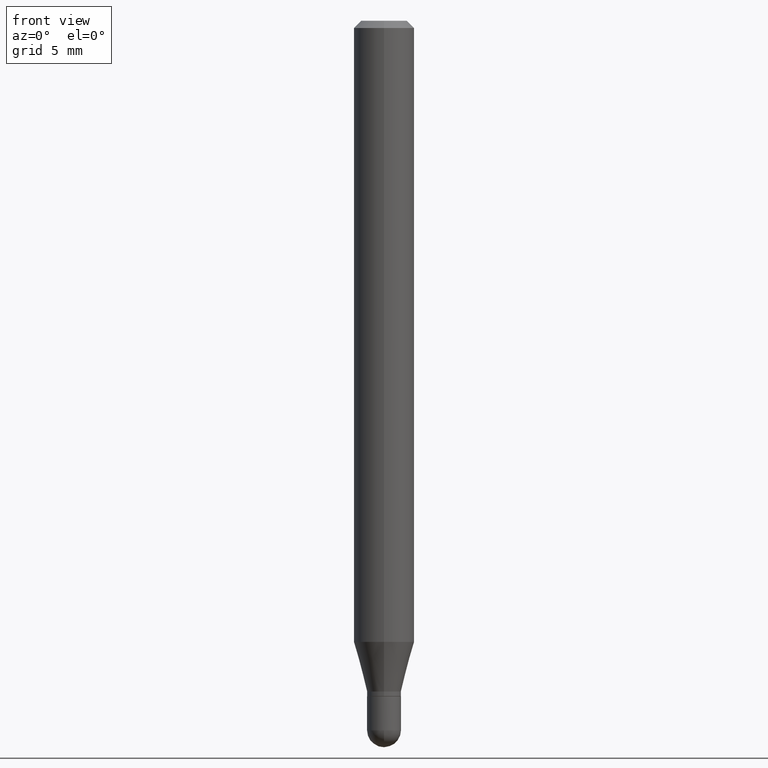
[diagram: clean part render]
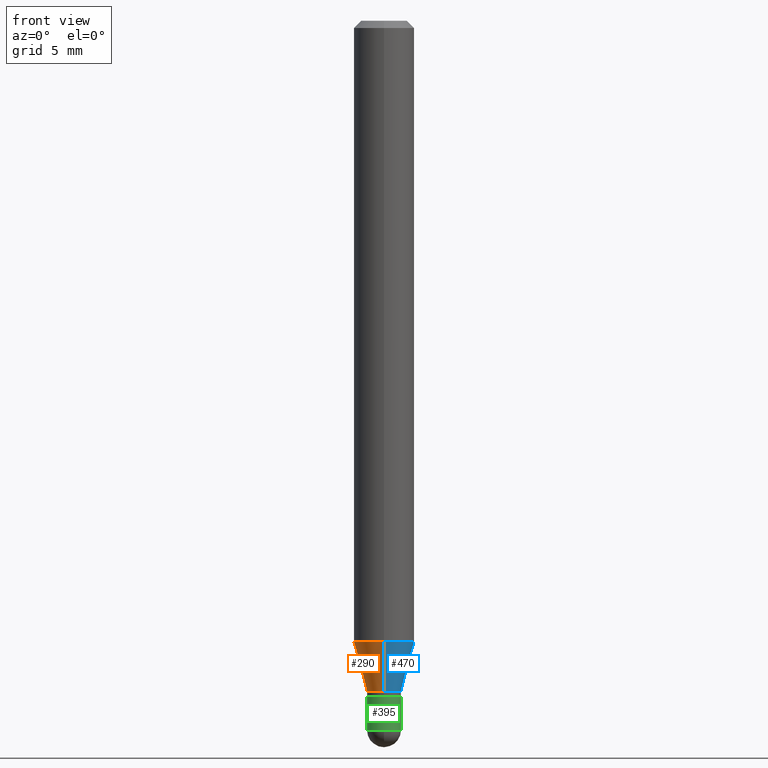
[diagram: same view with three faces highlighted in distinct colors, each labeled with its STEP entity id]
A machine part, front view with three faces highlighted in distinct colors.
Their STEP definitions:

[orange] entity #290 — the highlighted conical surface has half-angle 15 deg.
#10 = DIRECTION ( 'NONE',  ( -6.982962677686265133E-15, -1.000000000000000000, 0.000000000000000000 ) ) ;
#14 = CARTESIAN_POINT ( 'NONE',  ( -4.364351673553604601E-16, -0.06250000000000451028, -1.282368602791855716 ) ) ;
#37 = AXIS2_PLACEMENT_3D ( 'NONE', #57, #213, #363 ) ;
#45 = DIRECTION ( 'NONE',  ( -2.445423426716322459E-29, 3.491546324825326452E-15, 1.000000000000000000 ) ) ;
#52 = EDGE_CURVE ( 'NONE', #141, #492, #437, .T. ) ;
#57 = CARTESIAN_POINT ( 'NONE',  ( 3.386911446002107109E-29, -4.835791659883077532E-15, -1.385000000000000009 ) ) ;
#61 = DIRECTION ( 'NONE',  ( -1.807323732225328167E-15, -0.2588190451025179084, 0.9659258262890690894 ) ) ;
#66 = DIRECTION ( 'NONE',  ( -2.445423426716322459E-29, 3.491546324825326452E-15, 1.000000000000000000 ) ) ;
#83 = CARTESIAN_POINT ( 'NONE',  ( 3.386911446002107109E-29, -4.835791659883077532E-15, -1.385000000000000009 ) ) ;
#98 = EDGE_CURVE ( 'NONE', #141, #485, #317, .T. ) ;
#103 = VECTOR ( 'NONE', #319, 39.37007874015748854 ) ;
#119 = CIRCLE ( 'NONE', #294, 0.06250000000000000000 ) ;
#131 = CARTESIAN_POINT ( 'NONE',  ( 4.440892098500936776E-16, 0.06249999999999548972, -1.282368602791856160 ) ) ;
#141 = VERTEX_POINT ( 'NONE', #481 ) ;
#148 = DIRECTION ( 'NONE',  ( -6.982962677686265922E-15, -1.000000000000000000, 4.370956789862821150E-15 ) ) ;
#153 = ORIENTED_EDGE ( 'NONE', *, *, #429, .F. ) ;
#154 = CONICAL_SURFACE ( 'NONE', #37, 0.03499999999999992700, 0.2617993877991499629 ) ;
#185 = EDGE_LOOP ( 'NONE', ( #266, #343, #221, #153 ) ) ;
#187 = VERTEX_POINT ( 'NONE', #14 ) ;
#213 = DIRECTION ( 'NONE',  ( -2.445423426716322459E-29, 3.491546324825326452E-15, 1.000000000000000000 ) ) ;
#221 = ORIENTED_EDGE ( 'NONE', *, *, #246, .T. ) ;
#246 = EDGE_CURVE ( 'NONE', #492, #187, #370, .T. ) ;
#266 = ORIENTED_EDGE ( 'NONE', *, *, #98, .F. ) ;
#290 = ADVANCED_FACE ( 'NONE', ( #402 ), #154, .T. ) ;
#294 = AXIS2_PLACEMENT_3D ( 'NONE', #409, #66, #148 ) ;
#295 = CARTESIAN_POINT ( 'NONE',  ( -2.444036937189849110E-16, -0.03500000000000476341, -1.385000000000000009 ) ) ;
#317 = LINE ( 'NONE', #357, #103 ) ;
#319 = DIRECTION ( 'NONE',  ( 1.839019923739597949E-15, 0.2588190451025246253, 0.9659258262890670910 ) ) ;
#322 = CARTESIAN_POINT ( 'NONE',  ( -2.444036937189849110E-16, -0.03500000000000476341, -1.385000000000000009 ) ) ;
#343 = ORIENTED_EDGE ( 'NONE', *, *, #52, .T. ) ;
#357 = CARTESIAN_POINT ( 'NONE',  ( 2.486899575160683688E-16, 0.03499999999999509059, -1.385000000000000009 ) ) ;
#363 = DIRECTION ( 'NONE',  ( -6.982962677686265133E-15, -1.000000000000000000, 0.000000000000000000 ) ) ;
#370 = LINE ( 'NONE', #295, #486 ) ;
#402 = FACE_OUTER_BOUND ( 'NONE', #185, .T. ) ;
#409 = CARTESIAN_POINT ( 'NONE',  ( 3.135934222952683289E-29, -4.477449382149292879E-15, -1.282368602791855938 ) ) ;
#429 = EDGE_CURVE ( 'NONE', #485, #187, #119, .T. ) ;
#437 = CIRCLE ( 'NONE', #504, 0.03499999999999992700 ) ;
#481 = CARTESIAN_POINT ( 'NONE',  ( 3.463895836830812450E-16, 0.03499999999999509059, -1.385000000000000009 ) ) ;
#485 = VERTEX_POINT ( 'NONE', #131 ) ;
#486 = VECTOR ( 'NONE', #61, 39.37007874015748143 ) ;
#492 = VERTEX_POINT ( 'NONE', #322 ) ;
#504 = AXIS2_PLACEMENT_3D ( 'NONE', #83, #45, #10 ) ;

[blue] entity #470 — the highlighted conical surface has half-angle 15 deg.
#14 = CARTESIAN_POINT ( 'NONE',  ( -4.364351673553604601E-16, -0.06250000000000451028, -1.282368602791855716 ) ) ;
#38 = AXIS2_PLACEMENT_3D ( 'NONE', #477, #245, #483 ) ;
#48 = CIRCLE ( 'NONE', #278, 0.06250000000000000000 ) ;
#61 = DIRECTION ( 'NONE',  ( -1.807323732225328167E-15, -0.2588190451025179084, 0.9659258262890690894 ) ) ;
#74 = EDGE_LOOP ( 'NONE', ( #434, #393, #194, #179 ) ) ;
#98 = EDGE_CURVE ( 'NONE', #141, #485, #317, .T. ) ;
#103 = VECTOR ( 'NONE', #319, 39.37007874015748854 ) ;
#131 = CARTESIAN_POINT ( 'NONE',  ( 4.440892098500936776E-16, 0.06249999999999548972, -1.282368602791856160 ) ) ;
#140 = DIRECTION ( 'NONE',  ( -6.982962677686265922E-15, -1.000000000000000000, 4.370956789862821150E-15 ) ) ;
#141 = VERTEX_POINT ( 'NONE', #481 ) ;
#142 = DIRECTION ( 'NONE',  ( -2.445423426716322459E-29, 3.491546324825326452E-15, 1.000000000000000000 ) ) ;
#162 = AXIS2_PLACEMENT_3D ( 'NONE', #488, #142, #494 ) ;
#174 = EDGE_CURVE ( 'NONE', #187, #485, #48, .T. ) ;
#179 = ORIENTED_EDGE ( 'NONE', *, *, #246, .F. ) ;
#182 = DIRECTION ( 'NONE',  ( -2.445423426716322459E-29, 3.491546324825326452E-15, 1.000000000000000000 ) ) ;
#187 = VERTEX_POINT ( 'NONE', #14 ) ;
#194 = ORIENTED_EDGE ( 'NONE', *, *, #174, .F. ) ;
#197 = FACE_OUTER_BOUND ( 'NONE', #74, .T. ) ;
#218 = EDGE_CURVE ( 'NONE', #492, #141, #427, .T. ) ;
#245 = DIRECTION ( 'NONE',  ( -2.445423426716322459E-29, 3.491546324825326452E-15, 1.000000000000000000 ) ) ;
#246 = EDGE_CURVE ( 'NONE', #492, #187, #370, .T. ) ;
#278 = AXIS2_PLACEMENT_3D ( 'NONE', #405, #182, #140 ) ;
#295 = CARTESIAN_POINT ( 'NONE',  ( -2.444036937189849110E-16, -0.03500000000000476341, -1.385000000000000009 ) ) ;
#317 = LINE ( 'NONE', #357, #103 ) ;
#319 = DIRECTION ( 'NONE',  ( 1.839019923739597949E-15, 0.2588190451025246253, 0.9659258262890670910 ) ) ;
#322 = CARTESIAN_POINT ( 'NONE',  ( -2.444036937189849110E-16, -0.03500000000000476341, -1.385000000000000009 ) ) ;
#357 = CARTESIAN_POINT ( 'NONE',  ( 2.486899575160683688E-16, 0.03499999999999509059, -1.385000000000000009 ) ) ;
#370 = LINE ( 'NONE', #295, #486 ) ;
#393 = ORIENTED_EDGE ( 'NONE', *, *, #98, .T. ) ;
#405 = CARTESIAN_POINT ( 'NONE',  ( 3.135934222952683289E-29, -4.477449382149292879E-15, -1.282368602791855938 ) ) ;
#421 = CONICAL_SURFACE ( 'NONE', #38, 0.03499999999999992700, 0.2617993877991499629 ) ;
#427 = CIRCLE ( 'NONE', #162, 0.03499999999999992700 ) ;
#434 = ORIENTED_EDGE ( 'NONE', *, *, #218, .T. ) ;
#470 = ADVANCED_FACE ( 'NONE', ( #197 ), #421, .T. ) ;
#477 = CARTESIAN_POINT ( 'NONE',  ( 3.386911446002107109E-29, -4.835791659883077532E-15, -1.385000000000000009 ) ) ;
#481 = CARTESIAN_POINT ( 'NONE',  ( 3.463895836830812450E-16, 0.03499999999999509059, -1.385000000000000009 ) ) ;
#483 = DIRECTION ( 'NONE',  ( -6.982962677686265133E-15, -1.000000000000000000, 0.000000000000000000 ) ) ;
#485 = VERTEX_POINT ( 'NONE', #131 ) ;
#486 = VECTOR ( 'NONE', #61, 39.37007874015748143 ) ;
#488 = CARTESIAN_POINT ( 'NONE',  ( 3.386911446002107109E-29, -4.835791659883077532E-15, -1.385000000000000009 ) ) ;
#492 = VERTEX_POINT ( 'NONE', #322 ) ;
#494 = DIRECTION ( 'NONE',  ( -6.982962677686265133E-15, -1.000000000000000000, 0.000000000000000000 ) ) ;

[green] entity #395 — the highlighted cylindrical surface (edge-blend (fillet) strip) has radius 0.889 mm, axis along (-0, 0, 1).
#1 = CARTESIAN_POINT ( 'NONE',  ( -0.03500000000000000333, 2.486899575160350887E-16, -1.721627281589217108E-30 ) ) ;
#3 = CARTESIAN_POINT ( 'NONE',  ( 0.000000000000000000, 0.000000000000000000, 0.000000000000000000 ) ) ;
#12 = AXIS2_PLACEMENT_3D ( 'NONE', #69, #235, #386 ) ;
#34 = ORIENTED_EDGE ( 'NONE', *, *, #460, .T. ) ;
#46 = EDGE_CURVE ( 'NONE', #452, #456, #390, .T. ) ;
#47 = DIRECTION ( 'NONE',  ( 1.000000000000000000, -6.982962677686276966E-15, 0.000000000000000000 ) ) ;
#49 = CARTESIAN_POINT ( 'NONE',  ( 0.03500000000000000333, -2.444036937190193250E-16, 1.706661871528577808E-30 ) ) ;
#69 = CARTESIAN_POINT ( 'NONE',  ( 3.582611801061224486E-29, -5.115020161405207405E-15, -1.464999999999999858 ) ) ;
#76 = EDGE_CURVE ( 'NONE', #428, #309, #92, .T. ) ;
#88 = DIRECTION ( 'NONE',  ( -2.445468806185136877E-29, 3.491481338843145188E-15, 1.000000000000000000 ) ) ;
#92 = LINE ( 'NONE', #1, #473 ) ;
#100 = CARTESIAN_POINT ( 'NONE',  ( -2.486899575159992942E-16, -0.03500000000000512423, -1.464999999999999858 ) ) ;
#113 = DIRECTION ( 'NONE',  ( -2.445468806185136597E-29, 3.491481338843145583E-15, 1.000000000000000000 ) ) ;
#137 = CIRCLE ( 'NONE', #358, 0.03500000000000000333 ) ;
#143 = EDGE_LOOP ( 'NONE', ( #366, #297, #34, #380, #196 ) ) ;
#150 = DIRECTION ( 'NONE',  ( 1.000000000000000000, -6.982962677686276966E-15, 0.000000000000000000 ) ) ;
#161 = VECTOR ( 'NONE', #353, 39.37007874015748143 ) ;
#163 = CYLINDRICAL_SURFACE ( 'NONE', #232, 0.03500000000000000333 ) ;
#196 = ORIENTED_EDGE ( 'NONE', *, *, #312, .F. ) ;
#200 = CARTESIAN_POINT ( 'NONE',  ( 3.582611801061224486E-29, -5.115020161405207405E-15, -1.464999999999999858 ) ) ;
#232 = AXIS2_PLACEMENT_3D ( 'NONE', #3, #113, #462 ) ;
#234 = VERTEX_POINT ( 'NONE', #100 ) ;
#235 = DIRECTION ( 'NONE',  ( -2.445468806185136597E-29, 3.491481338843145583E-15, 1.000000000000000000 ) ) ;
#271 = DIRECTION ( 'NONE',  ( -2.445468806185136597E-29, 3.491481338843145583E-15, 1.000000000000000000 ) ) ;
#297 = ORIENTED_EDGE ( 'NONE', *, *, #356, .T. ) ;
#309 = VERTEX_POINT ( 'NONE', #348 ) ;
#312 = EDGE_CURVE ( 'NONE', #309, #456, #464, .T. ) ;
#336 = CARTESIAN_POINT ( 'NONE',  ( 0.03500000000000000333, -5.115020161405208194E-15, -1.395000000000000018 ) ) ;
#348 = CARTESIAN_POINT ( 'NONE',  ( -0.03500000000000000333, -4.744128357029662925E-15, -1.395000000000000018 ) ) ;
#351 = AXIS2_PLACEMENT_3D ( 'NONE', #423, #376, #150 ) ;
#353 = DIRECTION ( 'NONE',  ( -2.445468806185136877E-29, 3.491481338843145188E-15, 1.000000000000000000 ) ) ;
#356 = EDGE_CURVE ( 'NONE', #428, #234, #137, .T. ) ;
#358 = AXIS2_PLACEMENT_3D ( 'NONE', #200, #271, #47 ) ;
#366 = ORIENTED_EDGE ( 'NONE', *, *, #76, .F. ) ;
#376 = DIRECTION ( 'NONE',  ( -2.445468806185136597E-29, 3.491481338843145583E-15, 1.000000000000000000 ) ) ;
#380 = ORIENTED_EDGE ( 'NONE', *, *, #46, .T. ) ;
#386 = DIRECTION ( 'NONE',  ( 1.000000000000000000, -6.982962677686276966E-15, 0.000000000000000000 ) ) ;
#390 = LINE ( 'NONE', #49, #161 ) ;
#395 = ADVANCED_FACE ( 'NONE', ( #509 ), #163, .T. ) ;
#399 = CIRCLE ( 'NONE', #12, 0.03500000000000000333 ) ;
#423 = CARTESIAN_POINT ( 'NONE',  ( 3.411428984628265351E-29, -4.870616467686188228E-15, -1.395000000000000018 ) ) ;
#428 = VERTEX_POINT ( 'NONE', #469 ) ;
#451 = CARTESIAN_POINT ( 'NONE',  ( 0.03500000000000000333, -5.237222008264717388E-15, -1.464999999999999858 ) ) ;
#452 = VERTEX_POINT ( 'NONE', #451 ) ;
#456 = VERTEX_POINT ( 'NONE', #336 ) ;
#460 = EDGE_CURVE ( 'NONE', #234, #452, #399, .T. ) ;
#462 = DIRECTION ( 'NONE',  ( 1.000000000000000000, -6.982962677686265922E-15, 4.876176775795936353E-29 ) ) ;
#464 = CIRCLE ( 'NONE', #351, 0.03500000000000000333 ) ;
#469 = CARTESIAN_POINT ( 'NONE',  ( -0.03500000000000000333, -4.744128357029662925E-15, -1.464999999999999858 ) ) ;
#473 = VECTOR ( 'NONE', #88, 39.37007874015748143 ) ;
#509 = FACE_OUTER_BOUND ( 'NONE', #143, .T. ) ;